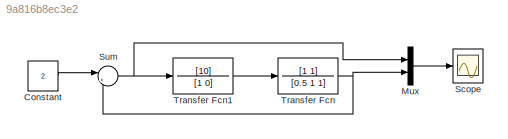
MODEL slx_9a816b8ec3e2
KIND model
BLOCK [Constant] Constant
  Value = 2
BLOCK [Mux] Mux
  DisplayOption = bar
  Inputs = 2
  Ports = [2, 1]
BLOCK [Scope] Scope
  DataFormat = StructureWithTime
  Floating = off
  NumInputPorts = 1
  Ports = [1]
  SampleTime = 0
  SaveName = ScopeData22
  SaveToWorkspace = on
  ShowLegends = off
  TimeRange = 30
  YMax = 10
  YMin = -2.41672e-62
  ZoomMode = yonly
BLOCK [Sum] Sum
  IconShape = round
  InputSameDT = off
  Inputs = |+-
  OutDataTypeStr = Inherit: Inherit via internal rule
  Ports = [2, 1]
  SaturateOnIntegerOverflow = off
BLOCK [TransferFcn] Transfer Fcn
  Denominator = [0.5 1 1]
  Numerator = [1 1]
BLOCK [TransferFcn] Transfer Fcn1
  Denominator = [1 0]
  Numerator = [10]
LINE Constant:1 -> Sum:1
LINE Mux:1 -> Scope:1
NET Sum:1 -> Mux:1, Transfer Fcn1:1
LINE Transfer Fcn1:1 -> Transfer Fcn:1
NET Transfer Fcn:1 -> Mux:2, Sum:2
note: NET lines group one-source signal fan-out (src -> all destinations, sorted); 1:1 wires keep LINE
